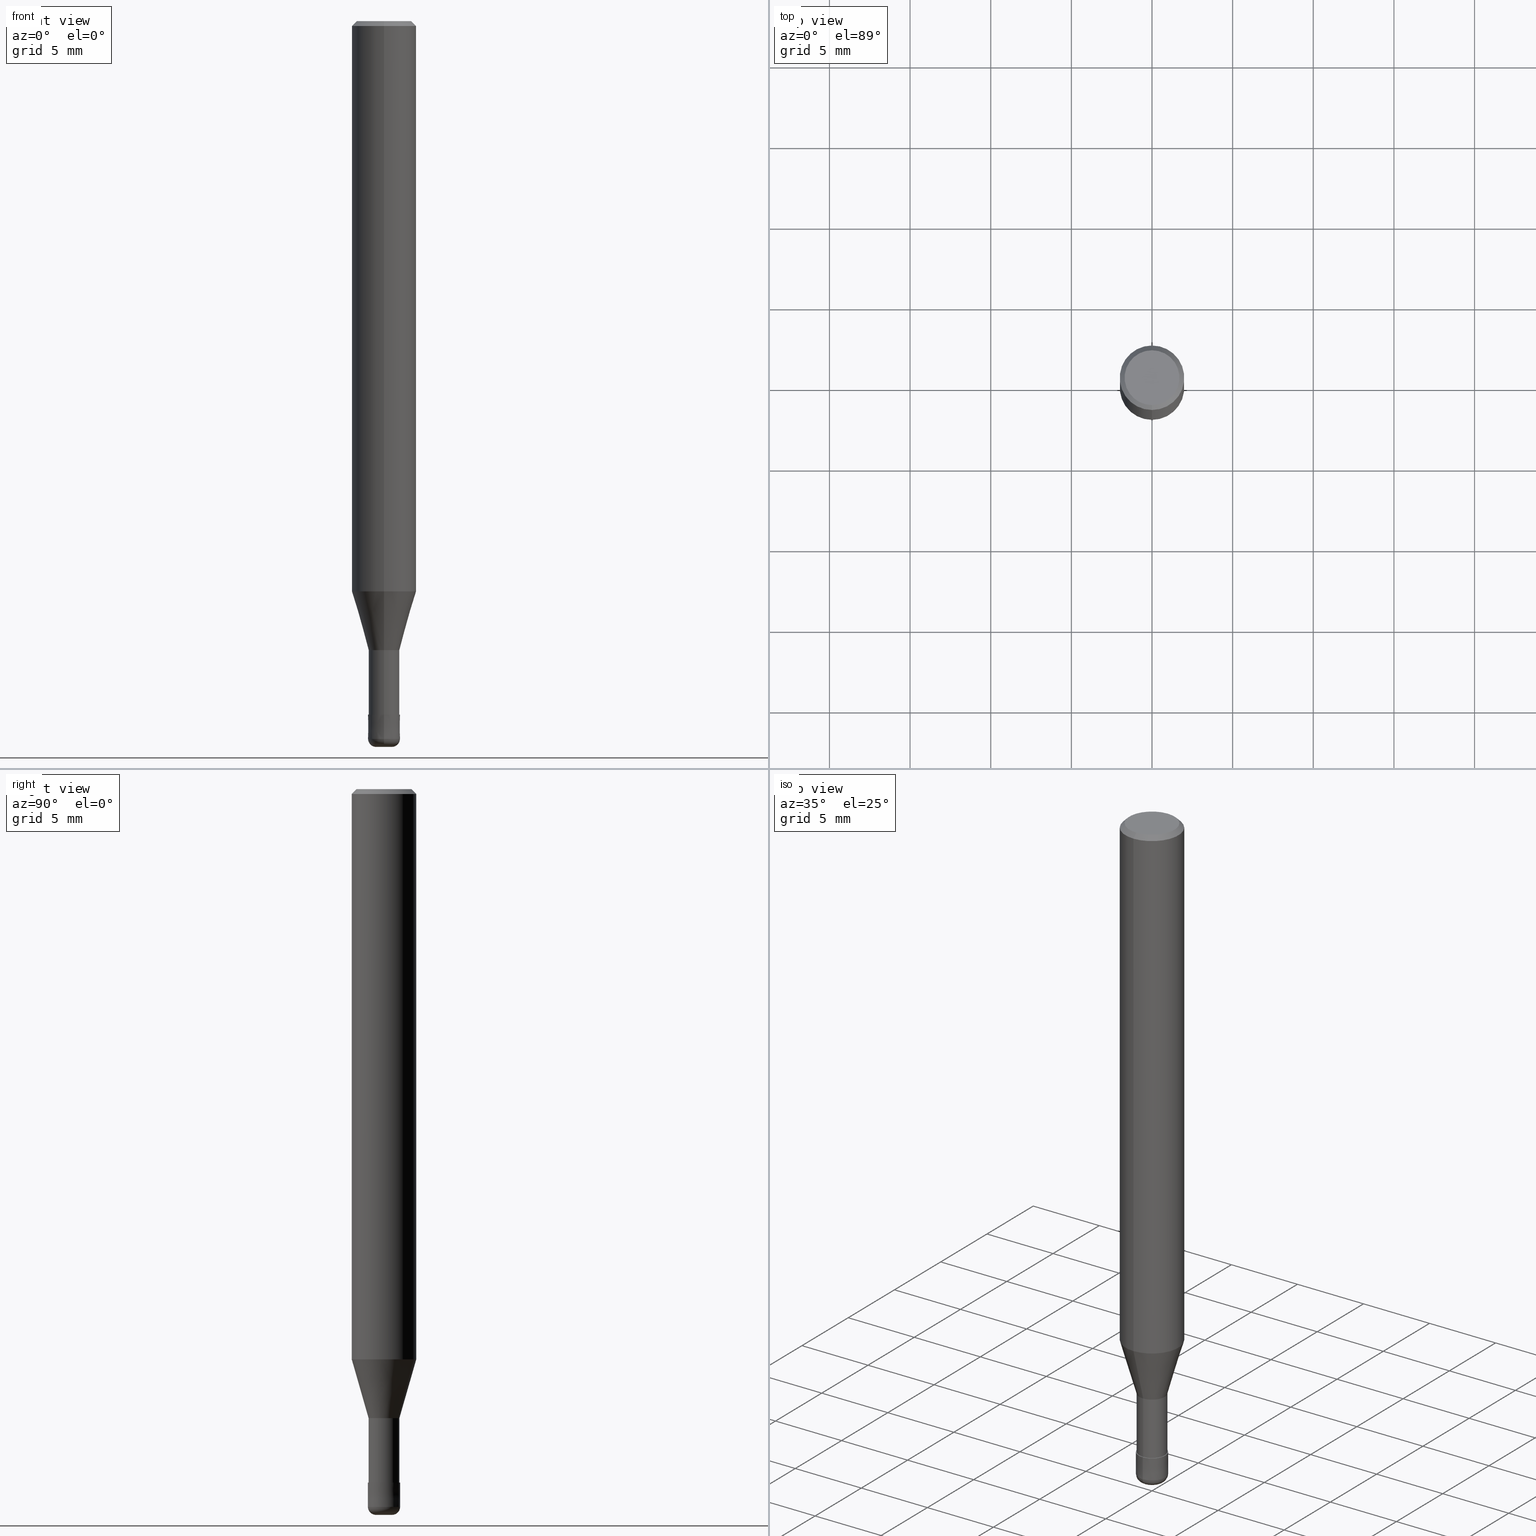
[diagram: canonical four-view strip — front | top / right | iso, engineering-drawing reading convention]
A machine part, canonical four-view strip (front | top / right | iso — engineering-drawing reading convention). The complete STEP part file that produces these views, byte-faithful:
ISO-10303-21;
HEADER;
FILE_DESCRIPTION(('no description'),'unknown implementation level');
FILE_NAME('HRRS4020-05-06S-Huellk.stp','  ',('CIMSOURCE GmbH'),('CADClick - KiM GmbH - www.kimweb.de'),'unknown preprocess','ACIS','unknown authorization');
FILE_SCHEMA(('automotive_design'));
ENDSEC;
DATA;
#1=MECHANICAL_DESIGN_GEOMETRIC_PRESENTATION_REPRESENTATION(' ',(#14,#15,#16,#17,#18,#19,#20,#21,#22,#23,#24,#25,#26,#27,#28,#29,#30,#31,#32,#33,#34,#35,#36,#37,#38,#39,#40,#41,#42,#43,#44,#45,#46,#47,#48,#49,#50,#51,#52,#53,#54,#55,#56,#57,#58,#59,#60,#61,#62,#63,#64,#65,#66,#67,#68,#69,#70,#71,#72,#73,#74,#75,#76,#77,#78,#79,#80),#10);
#2=PRODUCT_DEFINITION_CONTEXT('',#81,'design');
#3=APPLICATION_PROTOCOL_DEFINITION('INTERNATIONAL STANDARD','automotive_design',1994,#81);
#4=PRODUCT_CATEGORY_RELATIONSHIP('NONE','NONE',#82,#83);
#5=SHAPE_DEFINITION_REPRESENTATION(#84,#85);
#6=PRODUCT_DEFINITION_CONTEXT('',#86,'design');
#7=APPLICATION_PROTOCOL_DEFINITION('INTERNATIONAL STANDARD','automotive_design',1994,#86);
#8=PRODUCT_CATEGORY_RELATIONSHIP('NONE','NONE',#87,#88);
#9=SHAPE_DEFINITION_REPRESENTATION(#89,#90);
#10= (GEOMETRIC_REPRESENTATION_CONTEXT(3)GLOBAL_UNCERTAINTY_ASSIGNED_CONTEXT((#93))GLOBAL_UNIT_ASSIGNED_CONTEXT((#95,#96,#97))REPRESENTATION_CONTEXT('NONE','WORKSPACE'));
#14=STYLED_ITEM('',(#99),#100);
#15=STYLED_ITEM('',(#101),#102);
#16=STYLED_ITEM('',(#103),#104);
#17=STYLED_ITEM('',(#105),#106);
#18=STYLED_ITEM('',(#107),#108);
#19=STYLED_ITEM('',(#109),#110);
#20=STYLED_ITEM('',(#111),#112);
#21=STYLED_ITEM('',(#113),#114);
#22=STYLED_ITEM('',(#115),#116);
#23=STYLED_ITEM('',(#117),#118);
#24=STYLED_ITEM('',(#119),#120);
#25=STYLED_ITEM('',(#121),#122);
#26=STYLED_ITEM('',(#123),#124);
#27=STYLED_ITEM('',(#125),#126);
#28=STYLED_ITEM('',(#127),#128);
#29=STYLED_ITEM('',(#129),#130);
#30=STYLED_ITEM('',(#131),#132);
#31=STYLED_ITEM('',(#133),#134);
#32=STYLED_ITEM('',(#135),#136);
#33=STYLED_ITEM('',(#137),#138);
#34=STYLED_ITEM('',(#139),#140);
#35=STYLED_ITEM('',(#141),#142);
#36=STYLED_ITEM('',(#143),#144);
#37=STYLED_ITEM('',(#145),#146);
#38=STYLED_ITEM('',(#147),#148);
#39=STYLED_ITEM('',(#149),#150);
#40=STYLED_ITEM('',(#151),#152);
#41=STYLED_ITEM('',(#153),#154);
#42=STYLED_ITEM('',(#155),#156);
#43=STYLED_ITEM('',(#157),#158);
#44=STYLED_ITEM('',(#159),#160);
#45=STYLED_ITEM('',(#161),#162);
#46=STYLED_ITEM('',(#163),#164);
#47=STYLED_ITEM('',(#165),#166);
#48=STYLED_ITEM('',(#167),#168);
#49=STYLED_ITEM('',(#169),#170);
#50=STYLED_ITEM('',(#171),#172);
#51=STYLED_ITEM('',(#173),#174);
#52=STYLED_ITEM('',(#175),#176);
#53=STYLED_ITEM('',(#177),#178);
#54=STYLED_ITEM('',(#179),#180);
#55=STYLED_ITEM('',(#181),#182);
#56=STYLED_ITEM('',(#183),#184);
#57=STYLED_ITEM('',(#185),#186);
#58=STYLED_ITEM('',(#187),#188);
#59=STYLED_ITEM('',(#189),#190);
#60=STYLED_ITEM('',(#191),#192);
#61=STYLED_ITEM('',(#193),#194);
#62=STYLED_ITEM('',(#195),#196);
#63=STYLED_ITEM('',(#197),#198);
#64=STYLED_ITEM('',(#199),#200);
#65=STYLED_ITEM('',(#201),#202);
#66=STYLED_ITEM('',(#203),#204);
#67=STYLED_ITEM('',(#205),#206);
#68=STYLED_ITEM('',(#207),#208);
#69=STYLED_ITEM('',(#209),#210);
#70=STYLED_ITEM('',(#211),#212);
#71=STYLED_ITEM('',(#213),#214);
#72=STYLED_ITEM('',(#215),#216);
#73=STYLED_ITEM('',(#217),#218);
#74=STYLED_ITEM('',(#219),#220);
#75=STYLED_ITEM('',(#221),#222);
#76=STYLED_ITEM('',(#223),#224);
#77=STYLED_ITEM('',(#225),#226);
#78=STYLED_ITEM('',(#227),#228);
#79=STYLED_ITEM('',(#229),#230);
#80=STYLED_ITEM('',(#231),#232);
#81=APPLICATION_CONTEXT(' ');
#82=PRODUCT_CATEGORY('part','NONE');
#83=PRODUCT_RELATED_PRODUCT_CATEGORY('detail',' ',(#233));
#84=PRODUCT_DEFINITION_SHAPE('NONE','NONE',#234);
#85=ADVANCED_BREP_SHAPE_REPRESENTATION('1',(#158,#235),#10);
#86=APPLICATION_CONTEXT(' ');
#87=PRODUCT_CATEGORY('part','NONE');
#88=PRODUCT_RELATED_PRODUCT_CATEGORY('detail',' ',(#236));
#89=PRODUCT_DEFINITION_SHAPE('NONE','NONE',#237);
#90=ADVANCED_BREP_SHAPE_REPRESENTATION('2',(#100,#238),#10);
#93=UNCERTAINTY_MEASURE_WITH_UNIT(LENGTH_MEASURE(1.0E-006),#95,'','');
#95= (CONVERSION_BASED_UNIT('MILLIMETRE',#241)LENGTH_UNIT()NAMED_UNIT(#244));
#96= (NAMED_UNIT(#246)PLANE_ANGLE_UNIT()SI_UNIT($,.RADIAN.));
#97= (NAMED_UNIT(#246)SOLID_ANGLE_UNIT()SI_UNIT($,.STERADIAN.));
#99=PRESENTATION_STYLE_ASSIGNMENT((#252));
#100=MANIFOLD_SOLID_BREP('2',#253);
#101=PRESENTATION_STYLE_ASSIGNMENT((#254));
#102=EDGE_CURVE('',#118,#176,#255,.T.);
#103=PRESENTATION_STYLE_ASSIGNMENT((#256));
#104=EDGE_CURVE('',#108,#132,#257,.T.);
#105=PRESENTATION_STYLE_ASSIGNMENT((#258));
#106=EDGE_CURVE('',#118,#222,#259,.T.);
#107=PRESENTATION_STYLE_ASSIGNMENT((#260));
#108=VERTEX_POINT('',#261);
#109=PRESENTATION_STYLE_ASSIGNMENT((#262));
#110=EDGE_CURVE('',#172,#196,#263,.T.);
#111=PRESENTATION_STYLE_ASSIGNMENT((#264));
#112=VERTEX_POINT('',#265);
#113=PRESENTATION_STYLE_ASSIGNMENT((#266));
#114=EDGE_CURVE('',#222,#196,#267,.T.);
#115=PRESENTATION_STYLE_ASSIGNMENT((#268));
#116=ADVANCED_FACE('',(#269),#270,.T.);
#117=PRESENTATION_STYLE_ASSIGNMENT((#271));
#118=VERTEX_POINT('',#272);
#119=PRESENTATION_STYLE_ASSIGNMENT((#273));
#120=ADVANCED_FACE('',(#274),#275,.T.);
#121=PRESENTATION_STYLE_ASSIGNMENT((#276));
#122=VERTEX_POINT('',#277);
#123=PRESENTATION_STYLE_ASSIGNMENT((#278));
#124=VERTEX_POINT('',#279);
#125=PRESENTATION_STYLE_ASSIGNMENT((#280));
#126=EDGE_CURVE('',#174,#232,#281,.T.);
#127=PRESENTATION_STYLE_ASSIGNMENT((#282));
#128=ADVANCED_FACE('',(#283),#284,.T.);
#129=PRESENTATION_STYLE_ASSIGNMENT((#285));
#130=EDGE_CURVE('',#200,#188,#286,.T.);
#131=PRESENTATION_STYLE_ASSIGNMENT((#287));
#132=VERTEX_POINT('',#288);
#133=PRESENTATION_STYLE_ASSIGNMENT((#289));
#134=EDGE_CURVE('',#194,#232,#290,.T.);
#135=PRESENTATION_STYLE_ASSIGNMENT((#291));
#136=ADVANCED_FACE('',(#292),#293,.T.);
#137=PRESENTATION_STYLE_ASSIGNMENT((#294));
#138=EDGE_CURVE('',#186,#172,#295,.T.);
#139=PRESENTATION_STYLE_ASSIGNMENT((#296));
#140=EDGE_CURVE('',#132,#108,#297,.T.);
#141=PRESENTATION_STYLE_ASSIGNMENT((#298));
#142=EDGE_CURVE('',#196,#222,#299,.T.);
#143=PRESENTATION_STYLE_ASSIGNMENT((#300));
#144=ADVANCED_FACE('',(#301),#302,.T.);
#145=PRESENTATION_STYLE_ASSIGNMENT((#303));
#146=ADVANCED_FACE('',(#304),#305,.T.);
#147=PRESENTATION_STYLE_ASSIGNMENT((#306));
#148=EDGE_CURVE('',#122,#174,#307,.T.);
#149=PRESENTATION_STYLE_ASSIGNMENT((#308));
#150=ADVANCED_FACE('',(#309),#310,.T.);
#151=PRESENTATION_STYLE_ASSIGNMENT((#311));
#152=EDGE_CURVE('',#188,#112,#312,.T.);
#153=PRESENTATION_STYLE_ASSIGNMENT((#313));
#154=EDGE_CURVE('',#202,#112,#314,.T.);
#155=PRESENTATION_STYLE_ASSIGNMENT((#315));
#156=EDGE_CURVE('',#196,#176,#316,.T.);
#157=PRESENTATION_STYLE_ASSIGNMENT((#317));
#158=MANIFOLD_SOLID_BREP('1',#318);
#159=PRESENTATION_STYLE_ASSIGNMENT((#319));
#160=ADVANCED_FACE('',(#320),#321,.T.);
#161=PRESENTATION_STYLE_ASSIGNMENT((#322));
#162=EDGE_CURVE('',#166,#174,#323,.T.);
#163=PRESENTATION_STYLE_ASSIGNMENT((#324));
#164=EDGE_CURVE('',#222,#186,#325,.T.);
#165=PRESENTATION_STYLE_ASSIGNMENT((#326));
#166=VERTEX_POINT('',#327);
#167=PRESENTATION_STYLE_ASSIGNMENT((#328));
#168=ADVANCED_FACE('',(#329),#330,.T.);
#169=PRESENTATION_STYLE_ASSIGNMENT((#331));
#170=ADVANCED_FACE('',(#332),#333,.T.);
#171=PRESENTATION_STYLE_ASSIGNMENT((#334));
#172=VERTEX_POINT('',#335);
#173=PRESENTATION_STYLE_ASSIGNMENT((#336));
#174=VERTEX_POINT('',#337);
#175=PRESENTATION_STYLE_ASSIGNMENT((#338));
#176=VERTEX_POINT('',#339);
#177=PRESENTATION_STYLE_ASSIGNMENT((#340));
#178=EDGE_CURVE('',#202,#200,#341,.T.);
#179=PRESENTATION_STYLE_ASSIGNMENT((#342));
#180=ADVANCED_FACE('',(#343),#344,.T.);
#181=PRESENTATION_STYLE_ASSIGNMENT((#345));
#182=ADVANCED_FACE('',(#346),#347,.T.);
#183=PRESENTATION_STYLE_ASSIGNMENT((#348));
#184=EDGE_CURVE('',#124,#122,#349,.T.);
#185=PRESENTATION_STYLE_ASSIGNMENT((#350));
#186=VERTEX_POINT('',#351);
#187=PRESENTATION_STYLE_ASSIGNMENT((#352));
#188=VERTEX_POINT('',#353);
#189=PRESENTATION_STYLE_ASSIGNMENT((#354));
#190=EDGE_CURVE('',#232,#194,#355,.T.);
#191=PRESENTATION_STYLE_ASSIGNMENT((#356));
#192=EDGE_CURVE('',#122,#124,#357,.T.);
#193=PRESENTATION_STYLE_ASSIGNMENT((#358));
#194=VERTEX_POINT('',#359);
#195=PRESENTATION_STYLE_ASSIGNMENT((#360));
#196=VERTEX_POINT('',#361);
#197=PRESENTATION_STYLE_ASSIGNMENT((#362));
#198=ADVANCED_FACE('',(#363),#364,.T.);
#199=PRESENTATION_STYLE_ASSIGNMENT((#365));
#200=VERTEX_POINT('',#366);
#201=PRESENTATION_STYLE_ASSIGNMENT((#367));
#202=VERTEX_POINT('',#368);
#203=PRESENTATION_STYLE_ASSIGNMENT((#369));
#204=EDGE_CURVE('',#166,#124,#370,.T.);
#205=PRESENTATION_STYLE_ASSIGNMENT((#371));
#206=EDGE_CURVE('',#174,#166,#372,.T.);
#207=PRESENTATION_STYLE_ASSIGNMENT((#373));
#208=EDGE_CURVE('',#194,#166,#374,.T.);
#209=PRESENTATION_STYLE_ASSIGNMENT((#375));
#210=EDGE_CURVE('',#202,#108,#376,.T.);
#211=PRESENTATION_STYLE_ASSIGNMENT((#377));
#212=ADVANCED_FACE('',(#378),#379,.T.);
#213=PRESENTATION_STYLE_ASSIGNMENT((#380));
#214=ADVANCED_FACE('',(#381),#382,.T.);
#215=PRESENTATION_STYLE_ASSIGNMENT((#383));
#216=EDGE_CURVE('',#112,#202,#384,.T.);
#217=PRESENTATION_STYLE_ASSIGNMENT((#385));
#218=ADVANCED_FACE('',(#386),#387,.T.);
#219=PRESENTATION_STYLE_ASSIGNMENT((#388));
#220=EDGE_CURVE('',#176,#118,#389,.T.);
#221=PRESENTATION_STYLE_ASSIGNMENT((#390));
#222=VERTEX_POINT('',#391);
#223=PRESENTATION_STYLE_ASSIGNMENT((#392));
#224=ADVANCED_FACE('',(#393,#394),#395,.T.);
#225=PRESENTATION_STYLE_ASSIGNMENT((#396));
#226=EDGE_CURVE('',#132,#112,#397,.T.);
#227=PRESENTATION_STYLE_ASSIGNMENT((#398));
#228=EDGE_CURVE('',#172,#186,#399,.T.);
#229=PRESENTATION_STYLE_ASSIGNMENT((#400));
#230=EDGE_CURVE('',#188,#200,#401,.T.);
#231=PRESENTATION_STYLE_ASSIGNMENT((#402));
#232=VERTEX_POINT('',#403);
#233=PRODUCT('1','1','PART-1-DESC',(#404));
#234=PRODUCT_DEFINITION('NONE','NONE',#405,#2);
#235=AXIS2_PLACEMENT_3D('',#406,#407,#408);
#236=PRODUCT('2','2','PART-2-DESC',(#409));
#237=PRODUCT_DEFINITION('NONE','NONE',#410,#6);
#238=AXIS2_PLACEMENT_3D('',#411,#412,#413);
#241=LENGTH_MEASURE_WITH_UNIT(LENGTH_MEASURE(1.0),#414);
#244=DIMENSIONAL_EXPONENTS(1.0,0.0,0.0,0.0,0.0,0.0,0.0);
#246=DIMENSIONAL_EXPONENTS(0.0,0.0,0.0,0.0,0.0,0.0,0.0);
#252=SURFACE_STYLE_USAGE(.BOTH.,#415);
#253=CLOSED_SHELL('',(#160,#214,#168,#146,#212,#128));
#254=CURVE_STYLE('',#416,POSITIVE_LENGTH_MEASURE(1.0E-006),#417);
#255=CIRCLE('',#418,1.7);
#256=CURVE_STYLE('',#419,POSITIVE_LENGTH_MEASURE(1.0E-006),#420);
#257=CIRCLE('',#421,0.9999);
#258=CURVE_STYLE('',#422,POSITIVE_LENGTH_MEASURE(1.0E-006),#423);
#259=LINE('',#424,#425);
#260=POINT_STYLE(' ',#426,POSITIVE_LENGTH_MEASURE(1.0E-006),#427);
#261=CARTESIAN_POINT('',(1.224483893187E-016,-0.9999,-43.0));
#262=CURVE_STYLE('',#428,POSITIVE_LENGTH_MEASURE(1.0E-006),#429);
#263=LINE('',#430,#431);
#264=POINT_STYLE(' ',#432,POSITIVE_LENGTH_MEASURE(1.0E-006),#433);
#265=CARTESIAN_POINT('',(0.0,1.0,-44.5));
#266=CURVE_STYLE('',#434,POSITIVE_LENGTH_MEASURE(1.0E-006),#435);
#267=CIRCLE('',#436,2.0);
#268=SURFACE_STYLE_USAGE(.BOTH.,#437);
#269=FACE_OUTER_BOUND('',#438,.T.);
#270=PLANE('',#439);
#271=POINT_STYLE(' ',#440,POSITIVE_LENGTH_MEASURE(1.0E-006),#441);
#272=CARTESIAN_POINT('',(0.0,1.7,0.0));
#273=SURFACE_STYLE_USAGE(.BOTH.,#442);
#274=FACE_OUTER_BOUND('',#443,.T.);
#275=PLANE('',#444);
#276=POINT_STYLE(' ',#445,POSITIVE_LENGTH_MEASURE(1.0E-006),#446);
#277=CARTESIAN_POINT('',(1.16943783758268E-016,-0.95495,-43.0));
#278=POINT_STYLE(' ',#447,POSITIVE_LENGTH_MEASURE(1.0E-006),#448);
#279=CARTESIAN_POINT('',(0.0,0.95495,-43.0));
#280=CURVE_STYLE('',#449,POSITIVE_LENGTH_MEASURE(1.0E-006),#450);
#281=LINE('',#451,#452);
#282=SURFACE_STYLE_USAGE(.BOTH.,#453);
#283=FACE_OUTER_BOUND('',#454,.T.);
#284=PLANE('',#455);
#285=CURVE_STYLE('',#456,POSITIVE_LENGTH_MEASURE(1.0E-006),#457);
#286=CIRCLE('',#458,0.5);
#287=POINT_STYLE(' ',#459,POSITIVE_LENGTH_MEASURE(1.0E-006),#460);
#288=CARTESIAN_POINT('',(0.0,0.9999,-43.0));
#289=CURVE_STYLE('',#461,POSITIVE_LENGTH_MEASURE(1.0E-006),#462);
#290=CIRCLE('',#463,1.99995);
#291=SURFACE_STYLE_USAGE(.BOTH.,#464);
#292=FACE_OUTER_BOUND('',#465,.T.);
#293=CONICAL_SURFACE('',#466,1.47745,0.279277990456152);
#294=CURVE_STYLE('',#467,POSITIVE_LENGTH_MEASURE(1.0E-006),#468);
#295=CIRCLE('',#469,2.0);
#296=CURVE_STYLE('',#470,POSITIVE_LENGTH_MEASURE(1.0E-006),#471);
#297=CIRCLE('',#472,0.9999);
#298=CURVE_STYLE('',#473,POSITIVE_LENGTH_MEASURE(1.0E-006),#474);
#299=CIRCLE('',#475,2.0);
#300=SURFACE_STYLE_USAGE(.BOTH.,#476);
#301=FACE_OUTER_BOUND('',#477,.T.);
#302=CONICAL_SURFACE('',#478,1.85,0.785398163397453);
#303=SURFACE_STYLE_USAGE(.BOTH.,#479);
#304=FACE_OUTER_BOUND('',#480,.T.);
#305=CONICAL_SURFACE('',#481,0.99995,6.66666665678939E-005);
#306=CURVE_STYLE('',#482,POSITIVE_LENGTH_MEASURE(1.0E-006),#483);
#307=LINE('',#484,#485);
#308=SURFACE_STYLE_USAGE(.BOTH.,#486);
#309=FACE_OUTER_BOUND('',#487,.T.);
#310=CYLINDRICAL_SURFACE('',#488,0.95495);
#311=CURVE_STYLE('',#489,POSITIVE_LENGTH_MEASURE(1.0E-006),#490);
#312=CIRCLE('',#491,0.500000000000001);
#313=CURVE_STYLE('',#492,POSITIVE_LENGTH_MEASURE(1.0E-006),#493);
#314=CIRCLE('',#494,1.0);
#315=CURVE_STYLE('',#495,POSITIVE_LENGTH_MEASURE(1.0E-006),#496);
#316=LINE('',#497,#498);
#317=SURFACE_STYLE_USAGE(.BOTH.,#499);
#318=CLOSED_SHELL('',(#150,#136,#198,#144,#224,#116,#218,#170,#180,#182,#120));
#319=SURFACE_STYLE_USAGE(.BOTH.,#500);
#320=FACE_OUTER_BOUND('',#501,.T.);
#321=TOROIDAL_SURFACE('',#502,0.499999999999999,0.500000000000001);
#322=CURVE_STYLE('',#503,POSITIVE_LENGTH_MEASURE(1.0E-006),#504);
#323=CIRCLE('',#505,0.95495);
#324=CURVE_STYLE('',#506,POSITIVE_LENGTH_MEASURE(1.0E-006),#507);
#325=LINE('',#508,#509);
#326=POINT_STYLE(' ',#510,POSITIVE_LENGTH_MEASURE(1.0E-006),#511);
#327=CARTESIAN_POINT('',(0.0,0.95495,-39.0));
#328=SURFACE_STYLE_USAGE(.BOTH.,#512);
#329=FACE_OUTER_BOUND('',#513,.T.);
#330=PLANE('',#514);
#331=SURFACE_STYLE_USAGE(.BOTH.,#515);
#332=FACE_OUTER_BOUND('',#516,.T.);
#333=CYLINDRICAL_SURFACE('',#517,2.0);
#334=POINT_STYLE(' ',#518,POSITIVE_LENGTH_MEASURE(1.0E-006),#519);
#335=CARTESIAN_POINT('',(2.44921270764475E-016,-2.0,-35.356));
#336=POINT_STYLE(' ',#520,POSITIVE_LENGTH_MEASURE(1.0E-006),#521);
#337=CARTESIAN_POINT('',(1.16943783758268E-016,-0.95495,-39.0));
#338=POINT_STYLE(' ',#522,POSITIVE_LENGTH_MEASURE(1.0E-006),#523);
#339=CARTESIAN_POINT('',(2.08183080149804E-016,-1.7,0.0));
#340=CURVE_STYLE('',#524,POSITIVE_LENGTH_MEASURE(1.0E-006),#525);
#341=CIRCLE('',#526,0.500000000000001);
#342=SURFACE_STYLE_USAGE(.BOTH.,#527);
#343=FACE_OUTER_BOUND('',#528,.T.);
#344=CONICAL_SURFACE('',#529,1.47745,0.279277990456152);
#345=SURFACE_STYLE_USAGE(.BOTH.,#530);
#346=FACE_OUTER_BOUND('',#531,.T.);
#347=CYLINDRICAL_SURFACE('',#532,0.95495);
#348=CURVE_STYLE('',#533,POSITIVE_LENGTH_MEASURE(1.0E-006),#534);
#349=CIRCLE('',#535,0.95495);
#350=POINT_STYLE(' ',#536,POSITIVE_LENGTH_MEASURE(1.0E-006),#537);
#351=CARTESIAN_POINT('',(0.0,2.0,-35.356));
#352=POINT_STYLE(' ',#538,POSITIVE_LENGTH_MEASURE(1.0E-006),#539);
#353=CARTESIAN_POINT('',(0.0,0.5,-45.0));
#354=CURVE_STYLE('',#540,POSITIVE_LENGTH_MEASURE(1.0E-006),#541);
#355=CIRCLE('',#542,1.99995);
#356=CURVE_STYLE('',#543,POSITIVE_LENGTH_MEASURE(1.0E-006),#544);
#357=CIRCLE('',#545,0.95495);
#358=POINT_STYLE(' ',#546,POSITIVE_LENGTH_MEASURE(1.0E-006),#547);
#359=CARTESIAN_POINT('',(0.0,1.99995,-35.356));
#360=POINT_STYLE(' ',#548,POSITIVE_LENGTH_MEASURE(1.0E-006),#549);
#361=CARTESIAN_POINT('',(2.44921270764475E-016,-2.0,-0.299999999999997));
#362=SURFACE_STYLE_USAGE(.BOTH.,#550);
#363=FACE_OUTER_BOUND('',#551,.T.);
#364=CYLINDRICAL_SURFACE('',#552,2.0);
#365=POINT_STYLE(' ',#553,POSITIVE_LENGTH_MEASURE(1.0E-006),#554);
#366=CARTESIAN_POINT('',(6.12303176911189E-017,-0.5,-45.0));
#367=POINT_STYLE(' ',#555,POSITIVE_LENGTH_MEASURE(1.0E-006),#556);
#368=CARTESIAN_POINT('',(1.22460635382238E-016,-1.0,-44.5));
#369=CURVE_STYLE('',#557,POSITIVE_LENGTH_MEASURE(1.0E-006),#558);
#370=LINE('',#559,#560);
#371=CURVE_STYLE('',#561,POSITIVE_LENGTH_MEASURE(1.0E-006),#562);
#372=CIRCLE('',#563,0.95495);
#373=CURVE_STYLE('',#564,POSITIVE_LENGTH_MEASURE(1.0E-006),#565);
#374=LINE('',#566,#567);
#375=CURVE_STYLE('',#568,POSITIVE_LENGTH_MEASURE(1.0E-006),#569);
#376=LINE('',#570,#571);
#377=SURFACE_STYLE_USAGE(.BOTH.,#572);
#378=FACE_OUTER_BOUND('',#573,.T.);
#379=TOROIDAL_SURFACE('',#574,0.499999999999999,0.500000000000001);
#380=SURFACE_STYLE_USAGE(.BOTH.,#575);
#381=FACE_OUTER_BOUND('',#576,.T.);
#382=CONICAL_SURFACE('',#577,0.99995,6.66666665678939E-005);
#383=CURVE_STYLE('',#578,POSITIVE_LENGTH_MEASURE(1.0E-006),#579);
#384=CIRCLE('',#580,1.0);
#385=SURFACE_STYLE_USAGE(.BOTH.,#581);
#386=FACE_OUTER_BOUND('',#582,.T.);
#387=CONICAL_SURFACE('',#583,1.85,0.785398163397453);
#388=CURVE_STYLE('',#584,POSITIVE_LENGTH_MEASURE(1.0E-006),#585);
#389=CIRCLE('',#586,1.7);
#390=POINT_STYLE(' ',#587,POSITIVE_LENGTH_MEASURE(1.0E-006),#588);
#391=CARTESIAN_POINT('',(0.0,2.0,-0.299999999999997));
#392=SURFACE_STYLE_USAGE(.BOTH.,#589);
#393=FACE_OUTER_BOUND('',#590,.T.);
#394=FACE_BOUND('',#591,.T.);
#395=PLANE('',#592);
#396=CURVE_STYLE('',#593,POSITIVE_LENGTH_MEASURE(1.0E-006),#594);
#397=LINE('',#595,#596);
#398=CURVE_STYLE('',#597,POSITIVE_LENGTH_MEASURE(1.0E-006),#598);
#399=CIRCLE('',#599,2.0);
#400=CURVE_STYLE('',#600,POSITIVE_LENGTH_MEASURE(1.0E-006),#601);
#401=CIRCLE('',#602,0.5);
#402=POINT_STYLE(' ',#603,POSITIVE_LENGTH_MEASURE(1.0E-006),#604);
#403=CARTESIAN_POINT('',(2.44915147732706E-016,-1.99995,-35.356));
#404=PRODUCT_CONTEXT('',#81,'mechanical');
#405=PRODUCT_DEFINITION_FORMATION_WITH_SPECIFIED_SOURCE(' ','NONE',#233,.NOT_KNOWN.);
#406=CARTESIAN_POINT('',(0.0,0.0,0.0));
#407=DIRECTION('',(0.0,0.0,1.0));
#408=DIRECTION('',(1.0,0.0,0.0));
#409=PRODUCT_CONTEXT('',#86,'mechanical');
#410=PRODUCT_DEFINITION_FORMATION_WITH_SPECIFIED_SOURCE(' ','NONE',#236,.NOT_KNOWN.);
#411=CARTESIAN_POINT('',(0.0,0.0,0.0));
#412=DIRECTION('',(0.0,0.0,1.0));
#413=DIRECTION('',(1.0,0.0,0.0));
#414= (NAMED_UNIT(#244)LENGTH_UNIT()SI_UNIT(.MILLI.,.METRE.));
#415=SURFACE_SIDE_STYLE('',(#606));
#416=DRAUGHTING_PRE_DEFINED_CURVE_FONT('continuous');
#417=COLOUR_RGB('',0.498039215803146,0.498039215803146,0.498039215803146);
#418=AXIS2_PLACEMENT_3D('',#607,#608,#609);
#419=DRAUGHTING_PRE_DEFINED_CURVE_FONT('continuous');
#420=COLOUR_RGB('',0.800000011920929,0.800000011920929,0.800000011920929);
#421=AXIS2_PLACEMENT_3D('',#610,#611,#612);
#422=DRAUGHTING_PRE_DEFINED_CURVE_FONT('continuous');
#423=COLOUR_RGB('',0.498039215803146,0.498039215803146,0.498039215803146);
#424=CARTESIAN_POINT('',(-2.2655217545714E-016,1.85,-0.149999999999999));
#425=VECTOR('',#613,1.0);
#426=PRE_DEFINED_MARKER('');
#427=COLOUR_RGB('',0.800000011920929,0.800000011920929,0.800000011920929);
#428=DRAUGHTING_PRE_DEFINED_CURVE_FONT('continuous');
#429=COLOUR_RGB('',0.498039215803146,0.498039215803146,0.498039215803146);
#430=CARTESIAN_POINT('',(2.44921270764475E-016,-2.0,-17.828));
#431=VECTOR('',#614,1.0);
#432=PRE_DEFINED_MARKER('');
#433=COLOUR_RGB('',0.800000011920929,0.800000011920929,0.800000011920929);
#434=DRAUGHTING_PRE_DEFINED_CURVE_FONT('continuous');
#435=COLOUR_RGB('',0.498039215803146,0.498039215803146,0.498039215803146);
#436=AXIS2_PLACEMENT_3D('',#615,#616,#617);
#437=SURFACE_SIDE_STYLE('',(#618));
#438=EDGE_LOOP('',(#619,#620));
#439=AXIS2_PLACEMENT_3D('',#621,#622,#623);
#440=PRE_DEFINED_MARKER('');
#441=COLOUR_RGB('',0.498039215803146,0.498039215803146,0.498039215803146);
#442=SURFACE_SIDE_STYLE('',(#624));
#443=EDGE_LOOP('',(#625,#626));
#444=AXIS2_PLACEMENT_3D('',#627,#628,#629);
#445=PRE_DEFINED_MARKER('');
#446=COLOUR_RGB('',0.498039215803146,0.498039215803146,0.498039215803146);
#447=PRE_DEFINED_MARKER('');
#448=COLOUR_RGB('',0.498039215803146,0.498039215803146,0.498039215803146);
#449=DRAUGHTING_PRE_DEFINED_CURVE_FONT('continuous');
#450=COLOUR_RGB('',0.498039215803146,0.498039215803146,0.498039215803146);
#451=CARTESIAN_POINT('',(1.80929465745487E-016,-1.47745,-37.178));
#452=VECTOR('',#630,1.0);
#453=SURFACE_SIDE_STYLE('',(#631));
#454=EDGE_LOOP('',(#632,#633));
#455=AXIS2_PLACEMENT_3D('',#634,#635,#636);
#456=DRAUGHTING_PRE_DEFINED_CURVE_FONT('continuous');
#457=COLOUR_RGB('',0.800000011920929,0.800000011920929,0.800000011920929);
#458=AXIS2_PLACEMENT_3D('',#637,#638,#639);
#459=PRE_DEFINED_MARKER('');
#460=COLOUR_RGB('',0.800000011920929,0.800000011920929,0.800000011920929);
#461=DRAUGHTING_PRE_DEFINED_CURVE_FONT('continuous');
#462=COLOUR_RGB('',0.498039215803146,0.498039215803146,0.498039215803146);
#463=AXIS2_PLACEMENT_3D('',#640,#641,#642);
#464=SURFACE_SIDE_STYLE('',(#643));
#465=EDGE_LOOP('',(#644,#645,#646,#647));
#466=AXIS2_PLACEMENT_3D('',#648,#649,#650);
#467=DRAUGHTING_PRE_DEFINED_CURVE_FONT('continuous');
#468=COLOUR_RGB('',0.498039215803146,0.498039215803146,0.498039215803146);
#469=AXIS2_PLACEMENT_3D('',#651,#652,#653);
#470=DRAUGHTING_PRE_DEFINED_CURVE_FONT('continuous');
#471=COLOUR_RGB('',0.800000011920929,0.800000011920929,0.800000011920929);
#472=AXIS2_PLACEMENT_3D('',#654,#655,#656);
#473=DRAUGHTING_PRE_DEFINED_CURVE_FONT('continuous');
#474=COLOUR_RGB('',0.498039215803146,0.498039215803146,0.498039215803146);
#475=AXIS2_PLACEMENT_3D('',#657,#658,#659);
#476=SURFACE_SIDE_STYLE('',(#660));
#477=EDGE_LOOP('',(#661,#662,#663,#664));
#478=AXIS2_PLACEMENT_3D('',#665,#666,#667);
#479=SURFACE_SIDE_STYLE('',(#668));
#480=EDGE_LOOP('',(#669,#670,#671,#672));
#481=AXIS2_PLACEMENT_3D('',#673,#674,#675);
#482=DRAUGHTING_PRE_DEFINED_CURVE_FONT('continuous');
#483=COLOUR_RGB('',0.498039215803146,0.498039215803146,0.498039215803146);
#484=CARTESIAN_POINT('',(1.16943783758268E-016,-0.95495,-41.0));
#485=VECTOR('',#676,1.0);
#486=SURFACE_SIDE_STYLE('',(#677));
#487=EDGE_LOOP('',(#678,#679,#680,#681));
#488=AXIS2_PLACEMENT_3D('',#682,#683,#684);
#489=DRAUGHTING_PRE_DEFINED_CURVE_FONT('continuous');
#490=COLOUR_RGB('',0.800000011920929,0.800000011920929,0.800000011920929);
#491=AXIS2_PLACEMENT_3D('',#685,#686,#687);
#492=DRAUGHTING_PRE_DEFINED_CURVE_FONT('continuous');
#493=COLOUR_RGB('',0.800000011920929,0.800000011920929,0.800000011920929);
#494=AXIS2_PLACEMENT_3D('',#688,#689,#690);
#495=DRAUGHTING_PRE_DEFINED_CURVE_FONT('continuous');
#496=COLOUR_RGB('',0.498039215803146,0.498039215803146,0.498039215803146);
#497=CARTESIAN_POINT('',(2.2655217545714E-016,-1.85,-0.149999999999999));
#498=VECTOR('',#691,1.0);
#499=SURFACE_SIDE_STYLE('',(#692));
#500=SURFACE_SIDE_STYLE('',(#693));
#501=EDGE_LOOP('',(#694,#695,#696,#697));
#502=AXIS2_PLACEMENT_3D('',#698,#699,#700);
#503=DRAUGHTING_PRE_DEFINED_CURVE_FONT('continuous');
#504=COLOUR_RGB('',0.498039215803146,0.498039215803146,0.498039215803146);
#505=AXIS2_PLACEMENT_3D('',#701,#702,#703);
#506=DRAUGHTING_PRE_DEFINED_CURVE_FONT('continuous');
#507=COLOUR_RGB('',0.498039215803146,0.498039215803146,0.498039215803146);
#508=CARTESIAN_POINT('',(-2.44921270764475E-016,2.0,-17.828));
#509=VECTOR('',#704,1.0);
#510=PRE_DEFINED_MARKER('');
#511=COLOUR_RGB('',0.498039215803146,0.498039215803146,0.498039215803146);
#512=SURFACE_SIDE_STYLE('',(#705));
#513=EDGE_LOOP('',(#706,#707));
#514=AXIS2_PLACEMENT_3D('',#708,#709,#710);
#515=SURFACE_SIDE_STYLE('',(#711));
#516=EDGE_LOOP('',(#712,#713,#714,#715));
#517=AXIS2_PLACEMENT_3D('',#716,#717,#718);
#518=PRE_DEFINED_MARKER('');
#519=COLOUR_RGB('',0.498039215803146,0.498039215803146,0.498039215803146);
#520=PRE_DEFINED_MARKER('');
#521=COLOUR_RGB('',0.498039215803146,0.498039215803146,0.498039215803146);
#522=PRE_DEFINED_MARKER('');
#523=COLOUR_RGB('',0.498039215803146,0.498039215803146,0.498039215803146);
#524=DRAUGHTING_PRE_DEFINED_CURVE_FONT('continuous');
#525=COLOUR_RGB('',0.800000011920929,0.800000011920929,0.800000011920929);
#526=AXIS2_PLACEMENT_3D('',#719,#720,#721);
#527=SURFACE_SIDE_STYLE('',(#722));
#528=EDGE_LOOP('',(#723,#724,#725,#726));
#529=AXIS2_PLACEMENT_3D('',#727,#728,#729);
#530=SURFACE_SIDE_STYLE('',(#730));
#531=EDGE_LOOP('',(#731,#732,#733,#734));
#532=AXIS2_PLACEMENT_3D('',#735,#736,#737);
#533=DRAUGHTING_PRE_DEFINED_CURVE_FONT('continuous');
#534=COLOUR_RGB('',0.498039215803146,0.498039215803146,0.498039215803146);
#535=AXIS2_PLACEMENT_3D('',#738,#739,#740);
#536=PRE_DEFINED_MARKER('');
#537=COLOUR_RGB('',0.498039215803146,0.498039215803146,0.498039215803146);
#538=PRE_DEFINED_MARKER('');
#539=COLOUR_RGB('',0.800000011920929,0.800000011920929,0.800000011920929);
#540=DRAUGHTING_PRE_DEFINED_CURVE_FONT('continuous');
#541=COLOUR_RGB('',0.498039215803146,0.498039215803146,0.498039215803146);
#542=AXIS2_PLACEMENT_3D('',#741,#742,#743);
#543=DRAUGHTING_PRE_DEFINED_CURVE_FONT('continuous');
#544=COLOUR_RGB('',0.498039215803146,0.498039215803146,0.498039215803146);
#545=AXIS2_PLACEMENT_3D('',#744,#745,#746);
#546=PRE_DEFINED_MARKER('');
#547=COLOUR_RGB('',0.498039215803146,0.498039215803146,0.498039215803146);
#548=PRE_DEFINED_MARKER('');
#549=COLOUR_RGB('',0.498039215803146,0.498039215803146,0.498039215803146);
#550=SURFACE_SIDE_STYLE('',(#747));
#551=EDGE_LOOP('',(#748,#749,#750,#751));
#552=AXIS2_PLACEMENT_3D('',#752,#753,#754);
#553=PRE_DEFINED_MARKER('');
#554=COLOUR_RGB('',0.800000011920929,0.800000011920929,0.800000011920929);
#555=PRE_DEFINED_MARKER('');
#556=COLOUR_RGB('',0.800000011920929,0.800000011920929,0.800000011920929);
#557=DRAUGHTING_PRE_DEFINED_CURVE_FONT('continuous');
#558=COLOUR_RGB('',0.498039215803146,0.498039215803146,0.498039215803146);
#559=CARTESIAN_POINT('',(-1.16943783758268E-016,0.95495,-41.0));
#560=VECTOR('',#755,1.0);
#561=DRAUGHTING_PRE_DEFINED_CURVE_FONT('continuous');
#562=COLOUR_RGB('',0.498039215803146,0.498039215803146,0.498039215803146);
#563=AXIS2_PLACEMENT_3D('',#756,#757,#758);
#564=DRAUGHTING_PRE_DEFINED_CURVE_FONT('continuous');
#565=COLOUR_RGB('',0.498039215803146,0.498039215803146,0.498039215803146);
#566=CARTESIAN_POINT('',(-1.80929465745487E-016,1.47745,-37.178));
#567=VECTOR('',#759,1.0);
#568=DRAUGHTING_PRE_DEFINED_CURVE_FONT('continuous');
#569=COLOUR_RGB('',0.800000011920929,0.800000011920929,0.800000011920929);
#570=CARTESIAN_POINT('',(1.22454512350469E-016,-0.99995,-43.75));
#571=VECTOR('',#760,1.0);
#572=SURFACE_SIDE_STYLE('',(#761));
#573=EDGE_LOOP('',(#762,#763,#764,#765));
#574=AXIS2_PLACEMENT_3D('',#766,#767,#768);
#575=SURFACE_SIDE_STYLE('',(#769));
#576=EDGE_LOOP('',(#770,#771,#772,#773));
#577=AXIS2_PLACEMENT_3D('',#774,#775,#776);
#578=DRAUGHTING_PRE_DEFINED_CURVE_FONT('continuous');
#579=COLOUR_RGB('',0.800000011920929,0.800000011920929,0.800000011920929);
#580=AXIS2_PLACEMENT_3D('',#777,#778,#779);
#581=SURFACE_SIDE_STYLE('',(#780));
#582=EDGE_LOOP('',(#781,#782,#783,#784));
#583=AXIS2_PLACEMENT_3D('',#785,#786,#787);
#584=DRAUGHTING_PRE_DEFINED_CURVE_FONT('continuous');
#585=COLOUR_RGB('',0.498039215803146,0.498039215803146,0.498039215803146);
#586=AXIS2_PLACEMENT_3D('',#788,#789,#790);
#587=PRE_DEFINED_MARKER('');
#588=COLOUR_RGB('',0.498039215803146,0.498039215803146,0.498039215803146);
#589=SURFACE_SIDE_STYLE('',(#791));
#590=EDGE_LOOP('',(#792,#793));
#591=EDGE_LOOP('',(#794,#795));
#592=AXIS2_PLACEMENT_3D('',#796,#797,#798);
#593=DRAUGHTING_PRE_DEFINED_CURVE_FONT('continuous');
#594=COLOUR_RGB('',0.800000011920929,0.800000011920929,0.800000011920929);
#595=CARTESIAN_POINT('',(-1.22454512350469E-016,0.99995,-43.75));
#596=VECTOR('',#799,1.0);
#597=DRAUGHTING_PRE_DEFINED_CURVE_FONT('continuous');
#598=COLOUR_RGB('',0.498039215803146,0.498039215803146,0.498039215803146);
#599=AXIS2_PLACEMENT_3D('',#800,#801,#802);
#600=DRAUGHTING_PRE_DEFINED_CURVE_FONT('continuous');
#601=COLOUR_RGB('',0.800000011920929,0.800000011920929,0.800000011920929);
#602=AXIS2_PLACEMENT_3D('',#803,#804,#805);
#603=PRE_DEFINED_MARKER('');
#604=COLOUR_RGB('',0.498039215803146,0.498039215803146,0.498039215803146);
#606=SURFACE_STYLE_FILL_AREA(#806);
#607=CARTESIAN_POINT('',(0.0,0.0,0.0));
#608=DIRECTION('',(0.0,0.0,-1.0));
#609=DIRECTION('',(0.0,1.0,0.0));
#610=CARTESIAN_POINT('',(0.0,0.0,-43.0));
#611=DIRECTION('',(0.0,0.0,-1.0));
#612=DIRECTION('',(0.0,1.0,0.0));
#613=DIRECTION('',(-8.6592745707194E-017,0.707106781186551,-0.707106781186544));
#614=DIRECTION('',(-0.0,-0.0,1.0));
#615=CARTESIAN_POINT('',(0.0,0.0,-0.299999999999997));
#616=DIRECTION('',(0.0,0.0,-1.0));
#617=DIRECTION('',(0.0,1.0,0.0));
#618=SURFACE_STYLE_FILL_AREA(#807);
#619=ORIENTED_EDGE('',*,*,#102,.F.);
#620=ORIENTED_EDGE('',*,*,#220,.F.);
#621=CARTESIAN_POINT('',(0.0,0.85,0.0));
#622=DIRECTION('',(-0.0,0.0,1.0));
#623=DIRECTION('',(0.0,-1.0,0.0));
#624=SURFACE_STYLE_FILL_AREA(#808);
#625=ORIENTED_EDGE('',*,*,#184,.T.);
#626=ORIENTED_EDGE('',*,*,#192,.T.);
#627=CARTESIAN_POINT('',(0.0,0.477475,-43.0));
#628=DIRECTION('',(0.0,0.0,-1.0));
#629=DIRECTION('',(0.0,1.0,0.0));
#630=DIRECTION('',(3.37577051438857E-017,-0.275661685393983,0.961254719211172));
#631=SURFACE_STYLE_FILL_AREA(#809);
#632=ORIENTED_EDGE('',*,*,#230,.T.);
#633=ORIENTED_EDGE('',*,*,#130,.T.);
#634=CARTESIAN_POINT('',(0.0,0.25,-45.0));
#635=DIRECTION('',(0.0,0.0,-1.0));
#636=DIRECTION('',(0.0,1.0,0.0));
#637=CARTESIAN_POINT('',(0.0,0.0,-45.0));
#638=DIRECTION('',(0.0,0.0,-1.0));
#639=DIRECTION('',(0.0,1.0,0.0));
#640=CARTESIAN_POINT('',(0.0,0.0,-35.356));
#641=DIRECTION('',(0.0,0.0,-1.0));
#642=DIRECTION('',(0.0,1.0,0.0));
#643=SURFACE_STYLE_FILL_AREA(#810);
#644=ORIENTED_EDGE('',*,*,#208,.F.);
#645=ORIENTED_EDGE('',*,*,#134,.T.);
#646=ORIENTED_EDGE('',*,*,#126,.F.);
#647=ORIENTED_EDGE('',*,*,#162,.F.);
#648=CARTESIAN_POINT('',(0.0,0.0,-37.178));
#649=DIRECTION('',(-0.0,-0.0,1.0));
#650=DIRECTION('',(0.0,1.0,0.0));
#651=CARTESIAN_POINT('',(0.0,0.0,-35.356));
#652=DIRECTION('',(0.0,0.0,-1.0));
#653=DIRECTION('',(0.0,1.0,0.0));
#654=CARTESIAN_POINT('',(0.0,0.0,-43.0));
#655=DIRECTION('',(0.0,0.0,-1.0));
#656=DIRECTION('',(0.0,1.0,0.0));
#657=CARTESIAN_POINT('',(0.0,0.0,-0.299999999999997));
#658=DIRECTION('',(0.0,0.0,-1.0));
#659=DIRECTION('',(0.0,1.0,0.0));
#660=SURFACE_STYLE_FILL_AREA(#811);
#661=ORIENTED_EDGE('',*,*,#106,.F.);
#662=ORIENTED_EDGE('',*,*,#102,.T.);
#663=ORIENTED_EDGE('',*,*,#156,.F.);
#664=ORIENTED_EDGE('',*,*,#114,.F.);
#665=CARTESIAN_POINT('',(0.0,0.0,-0.149999999999999));
#666=DIRECTION('',(0.0,-0.0,-1.0));
#667=DIRECTION('',(0.0,1.0,0.0));
#668=SURFACE_STYLE_FILL_AREA(#812);
#669=ORIENTED_EDGE('',*,*,#226,.T.);
#670=ORIENTED_EDGE('',*,*,#154,.F.);
#671=ORIENTED_EDGE('',*,*,#210,.T.);
#672=ORIENTED_EDGE('',*,*,#104,.T.);
#673=CARTESIAN_POINT('',(0.0,0.0,-43.75));
#674=DIRECTION('',(0.0,-0.0,-1.0));
#675=DIRECTION('',(0.0,1.0,0.0));
#676=DIRECTION('',(-0.0,-0.0,1.0));
#677=SURFACE_STYLE_FILL_AREA(#813);
#678=ORIENTED_EDGE('',*,*,#204,.F.);
#679=ORIENTED_EDGE('',*,*,#162,.T.);
#680=ORIENTED_EDGE('',*,*,#148,.F.);
#681=ORIENTED_EDGE('',*,*,#184,.F.);
#682=CARTESIAN_POINT('',(0.0,0.0,-41.0));
#683=DIRECTION('',(-0.0,-0.0,1.0));
#684=DIRECTION('',(0.0,1.0,0.0));
#685=CARTESIAN_POINT('',(-6.12303176911188E-017,0.499999999999999,-44.5));
#686=DIRECTION('',(1.0,1.22460635382238E-016,0.0));
#687=DIRECTION('',(-1.22460635382238E-016,1.0,0.0));
#688=CARTESIAN_POINT('',(0.0,0.0,-44.5));
#689=DIRECTION('',(0.0,0.0,-1.0));
#690=DIRECTION('',(0.0,1.0,0.0));
#691=DIRECTION('',(-8.6592745707194E-017,0.707106781186551,0.707106781186544));
#692=SURFACE_STYLE_FILL_AREA(#814);
#693=SURFACE_STYLE_FILL_AREA(#815);
#694=ORIENTED_EDGE('',*,*,#178,.F.);
#695=ORIENTED_EDGE('',*,*,#154,.T.);
#696=ORIENTED_EDGE('',*,*,#152,.F.);
#697=ORIENTED_EDGE('',*,*,#130,.F.);
#698=CARTESIAN_POINT('',(0.0,0.0,-44.5));
#699=DIRECTION('',(0.0,0.0,-1.0));
#700=DIRECTION('',(0.0,-1.0,0.0));
#701=CARTESIAN_POINT('',(0.0,0.0,-39.0));
#702=DIRECTION('',(0.0,0.0,-1.0));
#703=DIRECTION('',(0.0,1.0,0.0));
#704=DIRECTION('',(0.0,0.0,-1.0));
#705=SURFACE_STYLE_FILL_AREA(#816);
#706=ORIENTED_EDGE('',*,*,#140,.F.);
#707=ORIENTED_EDGE('',*,*,#104,.F.);
#708=CARTESIAN_POINT('',(0.0,0.49995,-43.0));
#709=DIRECTION('',(-0.0,0.0,1.0));
#710=DIRECTION('',(0.0,-1.0,0.0));
#711=SURFACE_STYLE_FILL_AREA(#817);
#712=ORIENTED_EDGE('',*,*,#164,.T.);
#713=ORIENTED_EDGE('',*,*,#228,.F.);
#714=ORIENTED_EDGE('',*,*,#110,.T.);
#715=ORIENTED_EDGE('',*,*,#142,.T.);
#716=CARTESIAN_POINT('',(0.0,0.0,-17.828));
#717=DIRECTION('',(-0.0,-0.0,1.0));
#718=DIRECTION('',(0.0,1.0,0.0));
#719=CARTESIAN_POINT('',(6.12303176911188E-017,-0.499999999999999,-44.5));
#720=DIRECTION('',(1.0,1.22460635382238E-016,0.0));
#721=DIRECTION('',(1.22460635382238E-016,-1.0,-0.0));
#722=SURFACE_STYLE_FILL_AREA(#818);
#723=ORIENTED_EDGE('',*,*,#208,.T.);
#724=ORIENTED_EDGE('',*,*,#206,.F.);
#725=ORIENTED_EDGE('',*,*,#126,.T.);
#726=ORIENTED_EDGE('',*,*,#190,.T.);
#727=CARTESIAN_POINT('',(0.0,0.0,-37.178));
#728=DIRECTION('',(-0.0,-0.0,1.0));
#729=DIRECTION('',(0.0,1.0,0.0));
#730=SURFACE_STYLE_FILL_AREA(#819);
#731=ORIENTED_EDGE('',*,*,#204,.T.);
#732=ORIENTED_EDGE('',*,*,#192,.F.);
#733=ORIENTED_EDGE('',*,*,#148,.T.);
#734=ORIENTED_EDGE('',*,*,#206,.T.);
#735=CARTESIAN_POINT('',(0.0,0.0,-41.0));
#736=DIRECTION('',(-0.0,-0.0,1.0));
#737=DIRECTION('',(0.0,1.0,0.0));
#738=CARTESIAN_POINT('',(0.0,0.0,-43.0));
#739=DIRECTION('',(0.0,0.0,-1.0));
#740=DIRECTION('',(0.0,1.0,0.0));
#741=CARTESIAN_POINT('',(0.0,0.0,-35.356));
#742=DIRECTION('',(0.0,0.0,-1.0));
#743=DIRECTION('',(0.0,1.0,0.0));
#744=CARTESIAN_POINT('',(0.0,0.0,-43.0));
#745=DIRECTION('',(0.0,0.0,-1.0));
#746=DIRECTION('',(0.0,1.0,0.0));
#747=SURFACE_STYLE_FILL_AREA(#820);
#748=ORIENTED_EDGE('',*,*,#164,.F.);
#749=ORIENTED_EDGE('',*,*,#114,.T.);
#750=ORIENTED_EDGE('',*,*,#110,.F.);
#751=ORIENTED_EDGE('',*,*,#138,.F.);
#752=CARTESIAN_POINT('',(0.0,0.0,-17.828));
#753=DIRECTION('',(-0.0,-0.0,1.0));
#754=DIRECTION('',(0.0,1.0,0.0));
#755=DIRECTION('',(0.0,0.0,-1.0));
#756=CARTESIAN_POINT('',(0.0,0.0,-39.0));
#757=DIRECTION('',(0.0,0.0,-1.0));
#758=DIRECTION('',(0.0,1.0,0.0));
#759=DIRECTION('',(3.37577051438857E-017,-0.275661685393983,-0.961254719211172));
#760=DIRECTION('',(-8.16404234067263E-021,6.66666665185112E-005,0.999999997777778));
#761=SURFACE_STYLE_FILL_AREA(#821);
#762=ORIENTED_EDGE('',*,*,#178,.T.);
#763=ORIENTED_EDGE('',*,*,#230,.F.);
#764=ORIENTED_EDGE('',*,*,#152,.T.);
#765=ORIENTED_EDGE('',*,*,#216,.T.);
#766=CARTESIAN_POINT('',(0.0,0.0,-44.5));
#767=DIRECTION('',(0.0,0.0,-1.0));
#768=DIRECTION('',(0.0,-1.0,0.0));
#769=SURFACE_STYLE_FILL_AREA(#822);
#770=ORIENTED_EDGE('',*,*,#226,.F.);
#771=ORIENTED_EDGE('',*,*,#140,.T.);
#772=ORIENTED_EDGE('',*,*,#210,.F.);
#773=ORIENTED_EDGE('',*,*,#216,.F.);
#774=CARTESIAN_POINT('',(0.0,0.0,-43.75));
#775=DIRECTION('',(0.0,-0.0,-1.0));
#776=DIRECTION('',(0.0,1.0,0.0));
#777=CARTESIAN_POINT('',(0.0,0.0,-44.5));
#778=DIRECTION('',(0.0,0.0,-1.0));
#779=DIRECTION('',(0.0,1.0,0.0));
#780=SURFACE_STYLE_FILL_AREA(#823);
#781=ORIENTED_EDGE('',*,*,#106,.T.);
#782=ORIENTED_EDGE('',*,*,#142,.F.);
#783=ORIENTED_EDGE('',*,*,#156,.T.);
#784=ORIENTED_EDGE('',*,*,#220,.T.);
#785=CARTESIAN_POINT('',(0.0,0.0,-0.149999999999999));
#786=DIRECTION('',(0.0,-0.0,-1.0));
#787=DIRECTION('',(0.0,1.0,0.0));
#788=CARTESIAN_POINT('',(0.0,0.0,0.0));
#789=DIRECTION('',(0.0,0.0,-1.0));
#790=DIRECTION('',(0.0,1.0,0.0));
#791=SURFACE_STYLE_FILL_AREA(#824);
#792=ORIENTED_EDGE('',*,*,#138,.T.);
#793=ORIENTED_EDGE('',*,*,#228,.T.);
#794=ORIENTED_EDGE('',*,*,#134,.F.);
#795=ORIENTED_EDGE('',*,*,#190,.F.);
#796=CARTESIAN_POINT('',(0.0,1.0,-35.356));
#797=DIRECTION('',(0.0,0.0,-1.0));
#798=DIRECTION('',(0.0,1.0,0.0));
#799=DIRECTION('',(-8.16404234067263E-021,6.66666665185112E-005,-0.999999997777778));
#800=CARTESIAN_POINT('',(0.0,0.0,-35.356));
#801=DIRECTION('',(0.0,0.0,-1.0));
#802=DIRECTION('',(0.0,1.0,0.0));
#803=CARTESIAN_POINT('',(0.0,0.0,-45.0));
#804=DIRECTION('',(0.0,0.0,-1.0));
#805=DIRECTION('',(0.0,1.0,0.0));
#806=FILL_AREA_STYLE('',(#825));
#807=FILL_AREA_STYLE('',(#826));
#808=FILL_AREA_STYLE('',(#827));
#809=FILL_AREA_STYLE('',(#828));
#810=FILL_AREA_STYLE('',(#829));
#811=FILL_AREA_STYLE('',(#830));
#812=FILL_AREA_STYLE('',(#831));
#813=FILL_AREA_STYLE('',(#832));
#814=FILL_AREA_STYLE('',(#833));
#815=FILL_AREA_STYLE('',(#834));
#816=FILL_AREA_STYLE('',(#835));
#817=FILL_AREA_STYLE('',(#836));
#818=FILL_AREA_STYLE('',(#837));
#819=FILL_AREA_STYLE('',(#838));
#820=FILL_AREA_STYLE('',(#839));
#821=FILL_AREA_STYLE('',(#840));
#822=FILL_AREA_STYLE('',(#841));
#823=FILL_AREA_STYLE('',(#842));
#824=FILL_AREA_STYLE('',(#843));
#825=FILL_AREA_STYLE_COLOUR('',#844);
#826=FILL_AREA_STYLE_COLOUR('',#845);
#827=FILL_AREA_STYLE_COLOUR('',#846);
#828=FILL_AREA_STYLE_COLOUR('',#847);
#829=FILL_AREA_STYLE_COLOUR('',#848);
#830=FILL_AREA_STYLE_COLOUR('',#849);
#831=FILL_AREA_STYLE_COLOUR('',#850);
#832=FILL_AREA_STYLE_COLOUR('',#851);
#833=FILL_AREA_STYLE_COLOUR('',#852);
#834=FILL_AREA_STYLE_COLOUR('',#853);
#835=FILL_AREA_STYLE_COLOUR('',#854);
#836=FILL_AREA_STYLE_COLOUR('',#855);
#837=FILL_AREA_STYLE_COLOUR('',#856);
#838=FILL_AREA_STYLE_COLOUR('',#857);
#839=FILL_AREA_STYLE_COLOUR('',#858);
#840=FILL_AREA_STYLE_COLOUR('',#859);
#841=FILL_AREA_STYLE_COLOUR('',#860);
#842=FILL_AREA_STYLE_COLOUR('',#861);
#843=FILL_AREA_STYLE_COLOUR('',#862);
#844=COLOUR_RGB('',0.800000011920929,0.800000011920929,0.800000011920929);
#845=COLOUR_RGB('',0.498039215803146,0.498039215803146,0.498039215803146);
#846=COLOUR_RGB('',0.498039215803146,0.498039215803146,0.498039215803146);
#847=COLOUR_RGB('',0.800000011920929,0.800000011920929,0.800000011920929);
#848=COLOUR_RGB('',0.498039215803146,0.498039215803146,0.498039215803146);
#849=COLOUR_RGB('',0.498039215803146,0.498039215803146,0.498039215803146);
#850=COLOUR_RGB('',0.800000011920929,0.800000011920929,0.800000011920929);
#851=COLOUR_RGB('',0.498039215803146,0.498039215803146,0.498039215803146);
#852=COLOUR_RGB('',0.498039215803146,0.498039215803146,0.498039215803146);
#853=COLOUR_RGB('',0.800000011920929,0.800000011920929,0.800000011920929);
#854=COLOUR_RGB('',0.800000011920929,0.800000011920929,0.800000011920929);
#855=COLOUR_RGB('',0.498039215803146,0.498039215803146,0.498039215803146);
#856=COLOUR_RGB('',0.498039215803146,0.498039215803146,0.498039215803146);
#857=COLOUR_RGB('',0.498039215803146,0.498039215803146,0.498039215803146);
#858=COLOUR_RGB('',0.498039215803146,0.498039215803146,0.498039215803146);
#859=COLOUR_RGB('',0.800000011920929,0.800000011920929,0.800000011920929);
#860=COLOUR_RGB('',0.800000011920929,0.800000011920929,0.800000011920929);
#861=COLOUR_RGB('',0.498039215803146,0.498039215803146,0.498039215803146);
#862=COLOUR_RGB('',0.498039215803146,0.498039215803146,0.498039215803146);
#863=AXIS2_PLACEMENT_3D('PCS',#864,#865,#866);
#864=CARTESIAN_POINT('',(0.0,0.0,0.0));
#865=DIRECTION('',(0.0,0.0,1.0));
#866=DIRECTION('',(1.0,0.0,0.0));
#867=AXIS2_PLACEMENT_3D('CIP',#868,#869,#870);
#868=CARTESIAN_POINT('',(0.0,0.0,-45.0));
#869=DIRECTION('',(0.0,0.0,1.0));
#870=DIRECTION('',(1.0,0.0,0.0));
#871=AXIS2_PLACEMENT_3D('CRP',#872,#873,#874);
#872=CARTESIAN_POINT('',(-1.0,0.0,-45.0));
#873=DIRECTION('',(0.0,0.0,1.0));
#874=DIRECTION('',(1.0,0.0,0.0));
#875=AXIS2_PLACEMENT_3D('MCS',#876,#877,#878);
#876=CARTESIAN_POINT('',(0.0,0.0,-35.356));
#877=DIRECTION('',(0.0,0.0,1.0));
#878=DIRECTION('',(1.0,0.0,0.0));
#879=CONSTRUCTIVE_GEOMETRY_REPRESENTATION_RELATIONSHIP('coordinate systems',$,#85,#880);
#880=CONSTRUCTIVE_GEOMETRY_REPRESENTATION('coordinate systems',(#863,#867,#871,#875),#10);
ENDSEC;
END-ISO-10303-21;
